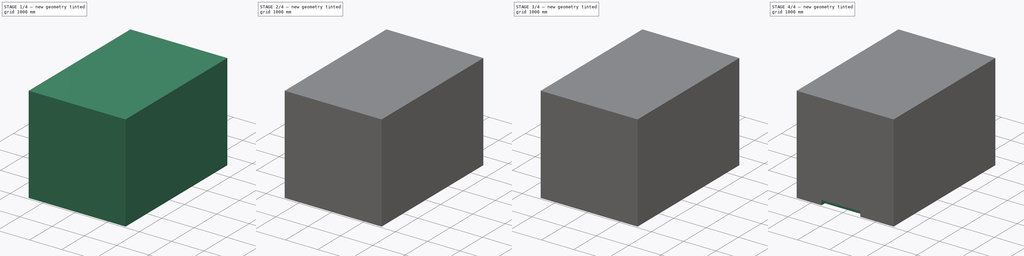
[diagram: build sequence overview — one tinted view per stage of 4, left to right]
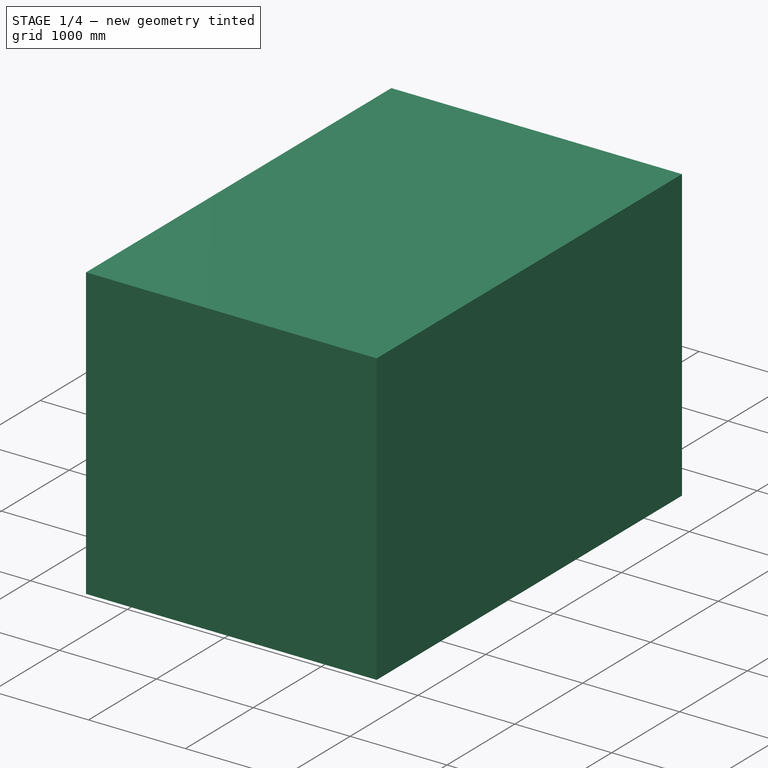
[diagram: stage 1 of 4 — iso view after this stage's code; geometry added in this stage tinted green]
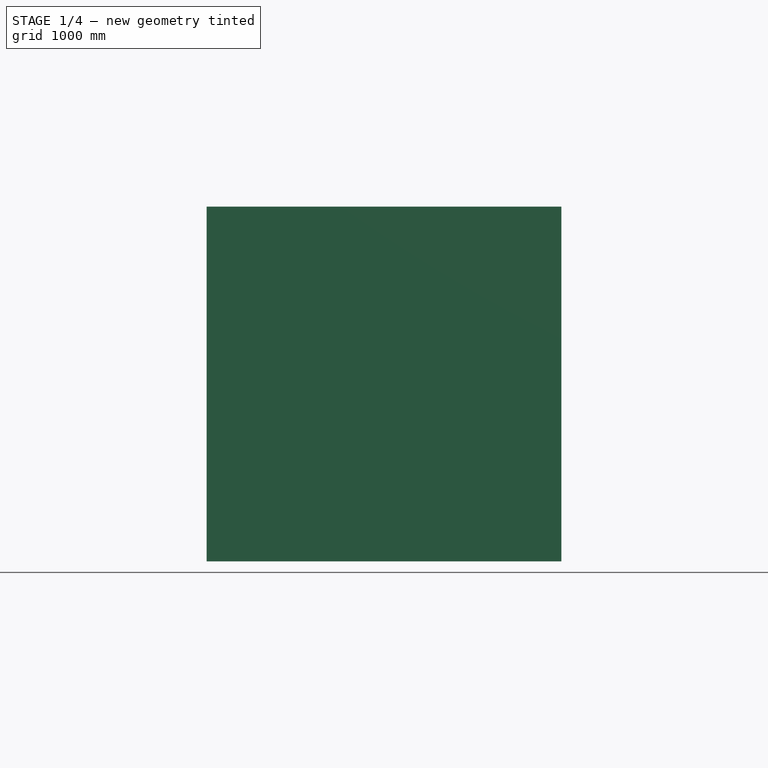
[diagram: stage 1 of 4 — front view after this stage's code; geometry added in this stage tinted green]
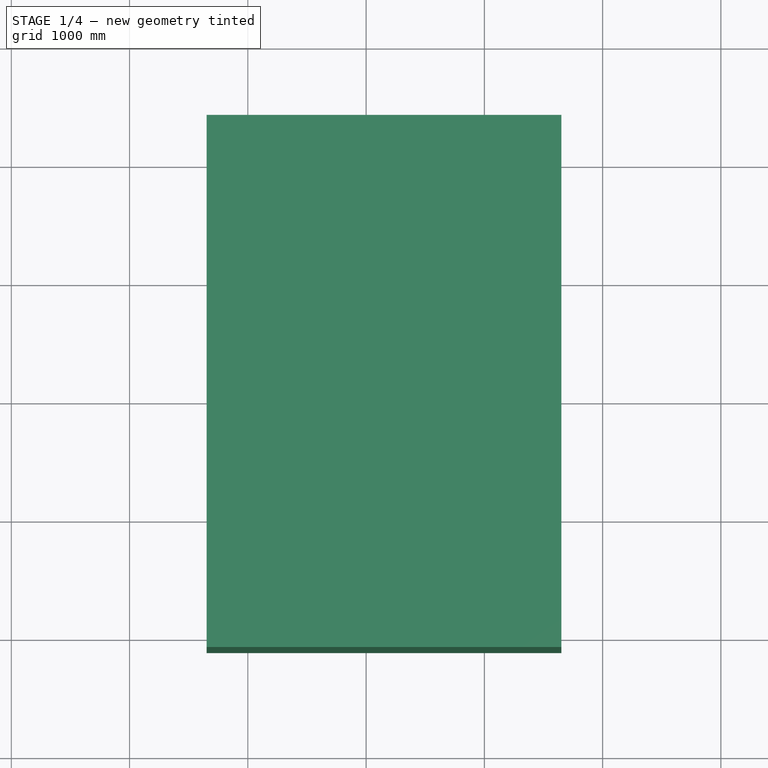
[diagram: stage 1 of 4 — top view after this stage's code; geometry added in this stage tinted green]
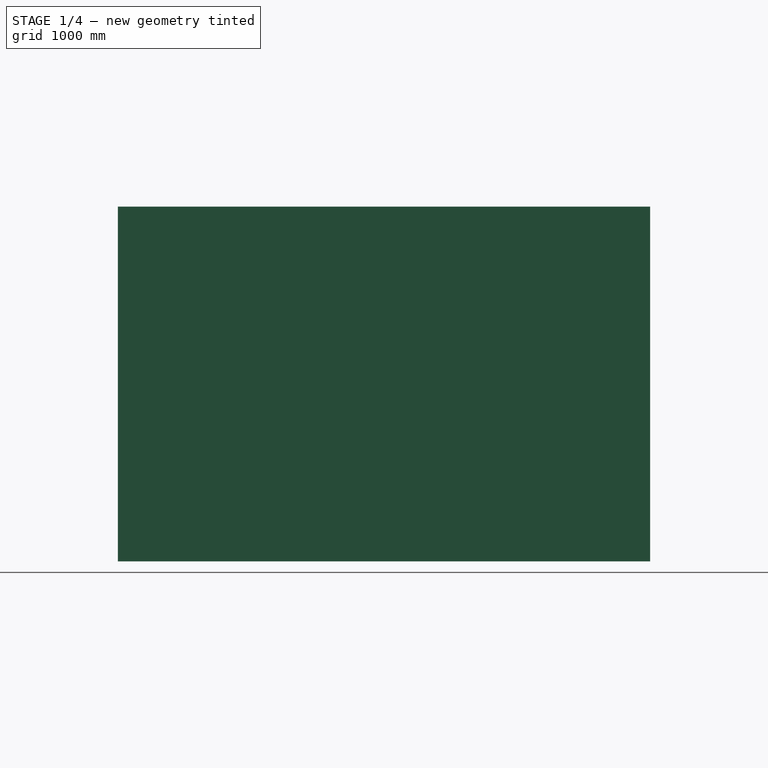
[diagram: stage 1 of 4 — right view after this stage's code; geometry added in this stage tinted green]
FCSTD DOCUMENT  (FreeCAD 0.20R29603 (Git))
Label: room_sample_model_for_air_circulation
License: All rights reserved
LicenseURL: http://en.wikipedia.org/wiki/All_rights_reserved
objects: Sketcher::SketchObject×11, PartDesign::Pocket×10, PartDesign::Pad×1, PartDesign::Body×1
note: 34 computed .brp shape members not serialized (recipe doc carries the construction recipe); baked Part::Feature solids carry a one-line shape summary decoded from their .brp

FEATURE [Sketcher::SketchObject] Sketch
  FullyConstrained = false
  MapMode = 5
  Support = -> [XY_Plane]
  sketch-geometry (4):
    g0: LineSegment StartX=-1348.64 StartY=2390.23 StartZ=0 EndX=1651.36 EndY=2390.23 EndZ=0
    g1: LineSegment StartX=1651.36 StartY=2390.23 StartZ=0 EndX=1651.36 EndY=-2109.77 EndZ=0
    g2: LineSegment StartX=1651.36 StartY=-2109.77 StartZ=0 EndX=-1348.64 EndY=-2109.77 EndZ=0
    g3: LineSegment StartX=-1348.64 StartY=-2109.77 StartZ=0 EndX=-1348.64 EndY=2390.23 EndZ=0
  constraints (10):
    c: Coincident(g0,g1)
    c: Coincident(g1,g2)
    c: Coincident(g2,g3)
    c: Coincident(g3,g0)
    c: Horizontal(g0)
    c: Horizontal(g2)
    c: Vertical(g1)
    c: Vertical(g3)
    c: DistanceX(g0,g0) = 3000
    c: DistanceY(g1,g1) = 4500
FEATURE [PartDesign::Pad] Pad
  Direction = (0,0,1)
  Length = 3000
  Length2 = 10
  Profile = -> Sketch
  ReferenceAxis = -> Sketch [N_Axis]
  Type = 0
FEATURE [Sketcher::SketchObject] Sketch001
  FullyConstrained = false
  MapMode = 5
  Placement = pos=(0,0,0) rot=(1,0,0;3.14159rad)
  Support = -> [Pad]
  sketch-geometry (38):
    g0: LineSegment StartX=1287.3 StartY=1122.81 StartZ=0 EndX=1337.3 EndY=1122.81 EndZ=0
    g1: LineSegment StartX=1337.3 StartY=1122.81 StartZ=0 EndX=1337.3 EndY=1172.81 EndZ=0
    g2: LineSegment StartX=1337.3 StartY=1172.81 StartZ=0 EndX=1287.3 EndY=1172.81 EndZ=0
    g3: LineSegment StartX=1287.3 StartY=1172.81 StartZ=0 EndX=1287.3 EndY=1122.81 EndZ=0
    g4: LineSegment StartX=1287.3 StartY=458.708 StartZ=0 EndX=1237.3 EndY=458.708 EndZ=0
    g5: LineSegment StartX=1237.3 StartY=458.708 StartZ=0 EndX=1237.3 EndY=508.708 EndZ=0
    g6: LineSegment StartX=1237.3 StartY=508.708 StartZ=0 EndX=1287.3 EndY=508.708 EndZ=0
    g7: LineSegment StartX=1287.3 StartY=508.708 StartZ=0 EndX=1287.3 EndY=458.708 EndZ=0
    g8: LineSegment StartX=1287.3 StartY=1122.81 StartZ=0 EndX=1287.3 EndY=458.708 EndZ=0
    g9: LineSegment StartX=-12.7036 StartY=1122.81 StartZ=0 EndX=-62.7036 EndY=1122.81 EndZ=0
    g10: LineSegment StartX=-62.7036 StartY=1122.81 StartZ=0 EndX=-62.7036 EndY=1172.81 EndZ=0
    g11: LineSegment StartX=-62.7036 StartY=1172.81 StartZ=0 EndX=-12.7036 EndY=1172.81 EndZ=0
    g12: LineSegment StartX=-12.7036 StartY=1172.81 StartZ=0 EndX=-12.7036 EndY=1122.81 EndZ=0
    g13: LineSegment StartX=1287.3 StartY=1122.81 StartZ=0 EndX=-12.7036 EndY=1122.81 EndZ=0
    g14: LineSegment StartX=-12.7036 StartY=458.708 StartZ=0 EndX=-62.7036 EndY=458.708 EndZ=0
    g15: LineSegment StartX=-62.7036 StartY=458.708 StartZ=0 EndX=-62.7036 EndY=508.708 EndZ=0
    g16: LineSegment StartX=-62.7036 StartY=508.708 StartZ=0 EndX=-12.7036 EndY=508.708 EndZ=0
    g17: LineSegment StartX=-12.7036 StartY=508.708 StartZ=0 EndX=-12.7036 EndY=458.708 EndZ=0
    g18: LineSegment StartX=-12.7036 StartY=1122.81 StartZ=0 EndX=-12.7036 EndY=458.708 EndZ=0
    g19: LineSegment StartX=1608.18 StartY=295.653 StartZ=0 EndX=1558.18 EndY=295.653 EndZ=0
    g20: LineSegment StartX=1558.18 StartY=295.653 StartZ=0 EndX=1558.18 EndY=345.653 EndZ=0
    g21: LineSegment StartX=1558.18 StartY=345.653 StartZ=0 EndX=1608.18 EndY=345.653 EndZ=0
    g22: LineSegment StartX=1608.18 StartY=345.653 StartZ=0 EndX=1608.18 EndY=295.653 EndZ=0
    g23: LineSegment StartX=1608.18 StartY=-604.347 StartZ=0 EndX=1558.18 EndY=-604.347 EndZ=0
    g24: LineSegment StartX=1608.18 StartY=295.653 StartZ=0 EndX=1608.18 EndY=-604.347 EndZ=0
    g25: LineSegment StartX=1128.18 StartY=295.653 StartZ=0 EndX=1078.18 EndY=295.653 EndZ=0
    g26: LineSegment StartX=1078.18 StartY=295.653 StartZ=0 EndX=1078.18 EndY=345.653 EndZ=0
    g27: LineSegment StartX=1078.18 StartY=345.653 StartZ=0 EndX=1128.18 EndY=345.653 EndZ=0
    g28: LineSegment StartX=1128.18 StartY=345.653 StartZ=0 EndX=1128.18 EndY=295.653 EndZ=0
    g29: LineSegment StartX=1608.18 StartY=295.653 StartZ=0 EndX=1128.18 EndY=295.653 EndZ=0
    g30: LineSegment StartX=1128.18 StartY=-604.347 StartZ=0 EndX=1078.18 EndY=-604.347 EndZ=0
    g31: LineSegment StartX=1078.18 StartY=-604.347 StartZ=0 EndX=1078.18 EndY=-654.347 EndZ=0
    g32: LineSegment StartX=1078.18 StartY=-654.347 StartZ=0 EndX=1128.18 EndY=-654.347 EndZ=0
    g33: LineSegment StartX=1128.18 StartY=-654.347 StartZ=0 EndX=1128.18 EndY=-604.347 EndZ=0
    g34: LineSegment StartX=1128.18 StartY=295.653 StartZ=0 EndX=1128.18 EndY=-604.347 EndZ=0
    g35: LineSegment StartX=1558.18 StartY=-604.347 StartZ=0 EndX=1558.18 EndY=-654.347 EndZ=0
    g36: LineSegment StartX=1558.18 StartY=-654.347 StartZ=0 EndX=1608.18 EndY=-654.347 EndZ=0
    g37: LineSegment StartX=1608.18 StartY=-654.347 StartZ=0 EndX=1608.18 EndY=-604.347 EndZ=0
  constraints (104):
    c: Coincident(g0,g1)
    c: Coincident(g1,g2)
    c: Coincident(g2,g3)
    c: Coincident(g3,g0)
    c: Horizontal(g0)
    c: Horizontal(g2)
    c: Vertical(g1)
    c: Vertical(g3)
    c: Equal(g0,g1)
    c: DistanceX(g0,g0) = 50
    c: Coincident(g4,g5)
    c: Coincident(g5,g6)
    c: Coincident(g6,g7)
    c: Coincident(g7,g4)
    c: Horizontal(g4)
    c: Horizontal(g6)
    c: Vertical(g5)
    c: Vertical(g7)
    c: Equal(g4,g5)
    c: Equal(g0,g4) = 50
    c: Coincident(g0,g8)
    c: Coincident(g4,g8)
    c: Distance(g8) = 664.1
    c: Angle(g8) = -1.5708
    c: Coincident(g9,g10)
    c: Coincident(g10,g11)
    c: Coincident(g11,g12)
    c: Coincident(g12,g9)
    c: Horizontal(g9)
    c: Horizontal(g11)
    c: Vertical(g10)
    c: Vertical(g12)
    c: Equal(g9,g10)
    c: Equal(g0,g9) = 50
    c: Coincident(g0,g13)
    c: Coincident(g9,g13)
    c: Distance(g13) = 1300
    c: Perpendicular(g13,g8)
    c: Coincident(g14,g15)
    c: Coincident(g15,g16)
    c: Coincident(g16,g17)
    c: Coincident(g17,g14)
    c: Horizontal(g14)
    c: Horizontal(g16)
    c: Vertical(g15)
    c: Vertical(g17)
    c: Equal(g14,g15)
    c: Equal(g0,g14) = 50
    c: Coincident(g9,g18)
    c: Coincident(g14,g18)
    c: Equal(g8,g18)
    c: Parallel(g18,g8)
    c: Coincident(g19,g20)
    c: Coincident(g20,g21)
    c: Coincident(g21,g22)
    c: Coincident(g22,g19)
    c: Horizontal(g19)
    c: Horizontal(g21)
    c: Vertical(g20)
    c: Vertical(g22)
    c: Equal(g19,g20)
    c: Equal(g0,g19) = 50
    c: Horizontal(g23)
    c: Equal(g0,g23) = 50
    c: Coincident(g19,g24)
    c: Coincident(g23,g24)
    c: Parallel(g24,g8)
    c: Coincident(g25,g26)
    c: Coincident(g26,g27)
    c: Coincident(g27,g28)
    c: Coincident(g28,g25)
    c: Horizontal(g25)
    c: Horizontal(g27)
    c: Vertical(g26)
    c: Vertical(g28)
    c: Equal(g25,g26)
    c: Equal(g0,g25) = 50
    c: Coincident(g19,g29)
    c: Coincident(g25,g29)
    c: Perpendicular(g29,g8)
    c: Coincident(g30,g31)
    c: Coincident(g31,g32)
    c: Coincident(g32,g33)
    c: Coincident(g33,g30)
    c: Horizontal(g30)
    c: Horizontal(g32)
    c: Vertical(g31)
    c: Vertical(g33)
    c: Equal(g30,g31)
    c: Equal(g0,g30) = 50
    c: Coincident(g25,g34)
    c: Coincident(g30,g34)
    c: Parallel(g34,g8)
    c: DistanceX(g29,g29) = 480
    c: Equal(g24,g34)
    c: DistanceY(g34,g34) = 900
    c: Coincident(g23,g35)
    c: Coincident(g35,g36)
    c: Horizontal(g36)
    c: Coincident(g36,g37)
    c: Coincident(g37,g23)
    c: Vertical(g37)
    c: Vertical(g35)
    c: Equal(g35,g23)
FEATURE [PartDesign::Pocket] Pocket
  BaseFeature = -> Pad
  Direction = (0,0,1)
  Length = 620
  Length2 = 5
  Profile = -> Sketch001
  ReferenceAxis = -> Sketch001 [N_Axis]
  Type = 0
FEATURE [Sketcher::SketchObject] Sketch002
  FullyConstrained = false
  MapMode = 5
  Placement = pos=(0,0,620) rot=(1,0,0;3.14159rad)
  Support = -> [Pocket]
  sketch-geometry (8):
    g0: LineSegment StartX=-68.3598 StartY=1185.09 StartZ=0 EndX=1341.52 EndY=1185.09 EndZ=0
    g1: LineSegment StartX=1341.52 StartY=1185.09 StartZ=0 EndX=1341.52 EndY=456.651 EndZ=0
    g2: LineSegment StartX=1341.52 StartY=456.651 StartZ=0 EndX=-68.3598 EndY=456.651 EndZ=0
    g3: LineSegment StartX=-68.3598 StartY=456.651 StartZ=0 EndX=-68.3598 EndY=1185.09 EndZ=0
    g4: LineSegment StartX=1077.17 StartY=349.291 StartZ=0 EndX=1617.63 EndY=349.291 EndZ=0
    g5: LineSegment StartX=1617.63 StartY=349.291 StartZ=0 EndX=1617.63 EndY=-661.127 EndZ=0
    g6: LineSegment StartX=1617.63 StartY=-661.127 StartZ=0 EndX=1077.17 EndY=-661.127 EndZ=0
    g7: LineSegment StartX=1077.17 StartY=-661.127 StartZ=0 EndX=1077.17 EndY=349.291 EndZ=0
  constraints (16):
    c: Coincident(g0,g1)
    c: Coincident(g1,g2)
    c: Coincident(g2,g3)
    c: Coincident(g3,g0)
    c: Horizontal(g0)
    c: Horizontal(g2)
    c: Vertical(g1)
    c: Vertical(g3)
    c: Coincident(g4,g5)
    c: Coincident(g5,g6)
    c: Coincident(g6,g7)
    c: Coincident(g7,g4)
    c: Horizontal(g4)
    c: Horizontal(g6)
    c: Vertical(g5)
    c: Vertical(g7)
FEATURE [PartDesign::Pocket] Pocket001
  BaseFeature = -> Pocket
  Direction = (0,0,1)
  Length = 140
  Length2 = 5
  Profile = -> Sketch002
  ReferenceAxis = -> Sketch002 [N_Axis]
  Type = 0
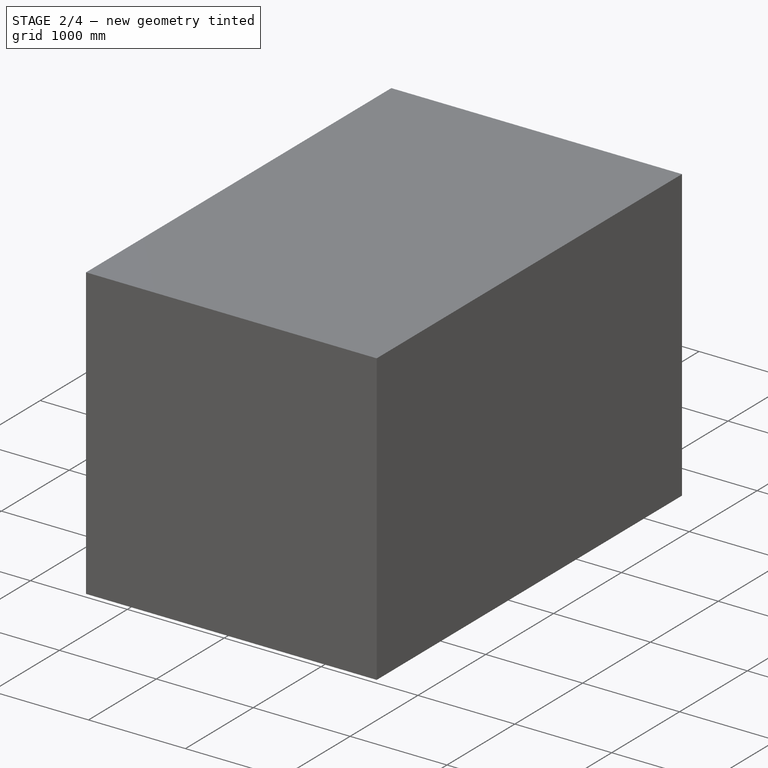
[diagram: stage 2 of 4 — iso view after this stage's code; geometry added in this stage tinted green]
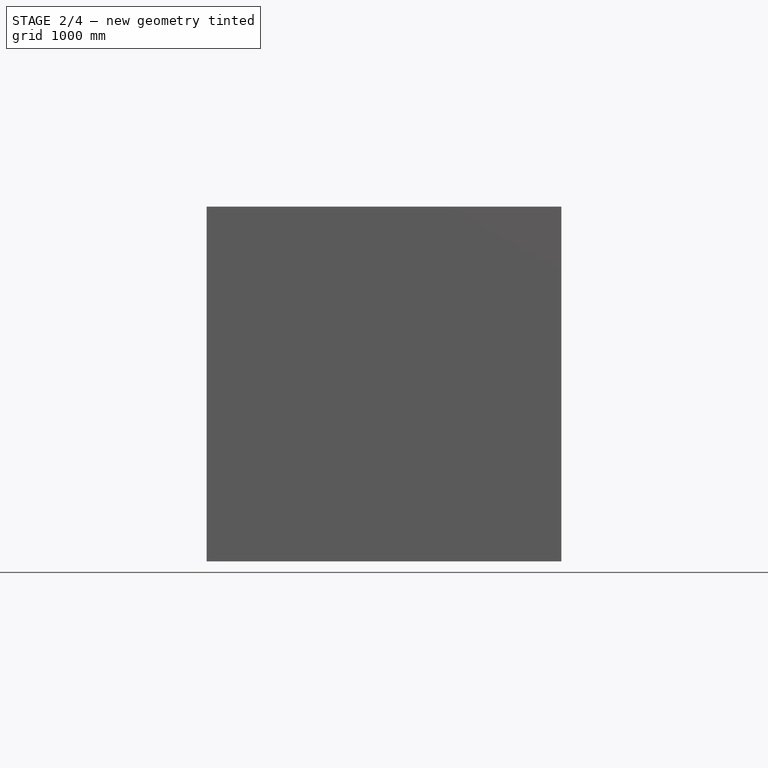
[diagram: stage 2 of 4 — front view after this stage's code; geometry added in this stage tinted green]
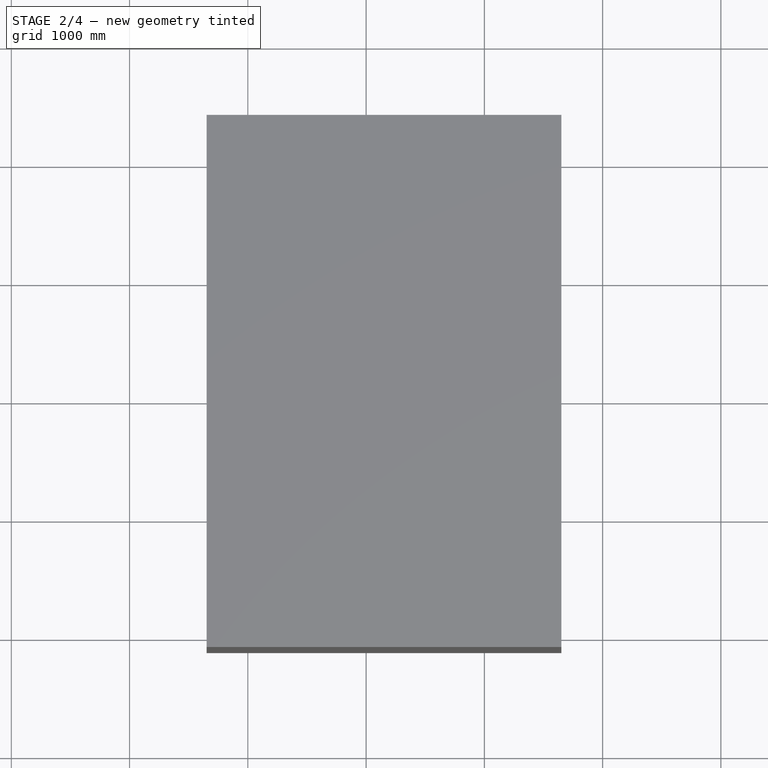
[diagram: stage 2 of 4 — top view after this stage's code; geometry added in this stage tinted green]
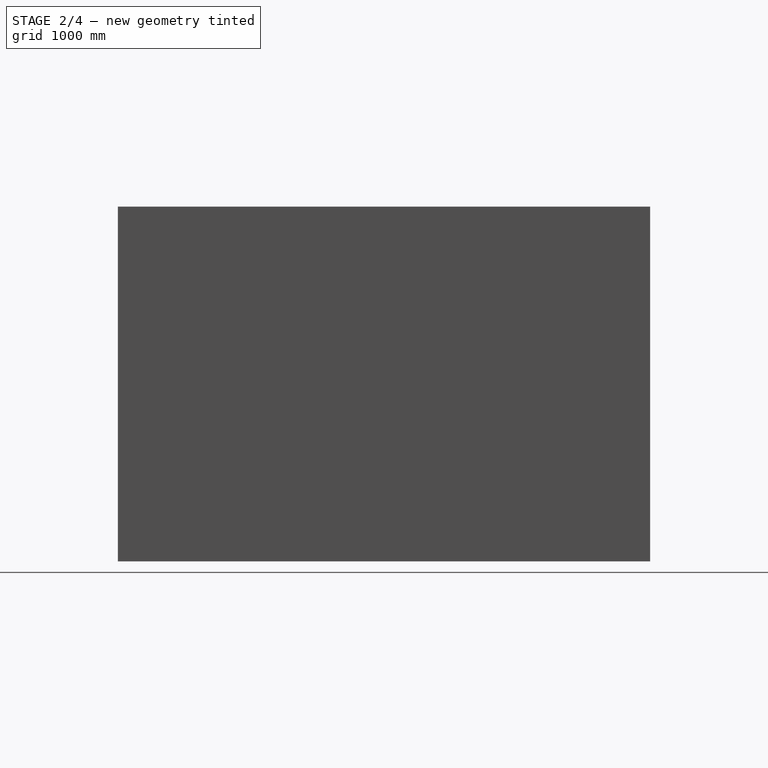
[diagram: stage 2 of 4 — right view after this stage's code; geometry added in this stage tinted green]
FEATURE [Sketcher::SketchObject] Sketch003
  FullyConstrained = false
  MapMode = 5
  Placement = pos=(0,0,0) rot=(1,0,0;3.14159rad)
  Support = -> [Pocket001]
  sketch-geometry (27):
    g0: LineSegment StartX=1569.72 StartY=-2311.82 StartZ=0 EndX=1609.72 EndY=-2311.82 EndZ=0
    g1: LineSegment StartX=1609.72 StartY=-2311.82 StartZ=0 EndX=1609.72 EndY=-2271.82 EndZ=0
    g2: LineSegment StartX=1609.72 StartY=-2271.82 StartZ=0 EndX=1569.72 EndY=-2271.82 EndZ=0
    g3: LineSegment StartX=1569.72 StartY=-2271.82 StartZ=0 EndX=1569.72 EndY=-2311.82 EndZ=0
    g4: LineSegment StartX=-435.324 StartY=-2311.82 StartZ=0 EndX=-395.324 EndY=-2311.82 EndZ=0
    g5: LineSegment StartX=-395.324 StartY=-2311.82 StartZ=0 EndX=-395.324 EndY=-2351.82 EndZ=0
    g6: LineSegment StartX=-395.324 StartY=-2351.82 StartZ=0 EndX=-435.324 EndY=-2351.82 EndZ=0
    g7: LineSegment StartX=-435.324 StartY=-2351.82 StartZ=0 EndX=-435.324 EndY=-2311.82 EndZ=0
    g8: LineSegment StartX=1569.72 StartY=-2311.82 StartZ=0 EndX=-435.324 EndY=-2311.82 EndZ=0
    g9: LineSegment StartX=1569.72 StartY=-711.816 StartZ=0 EndX=1609.72 EndY=-711.816 EndZ=0
    g10: LineSegment StartX=1609.72 StartY=-711.816 StartZ=0 EndX=1609.72 EndY=-751.816 EndZ=0
    g11: LineSegment StartX=1609.72 StartY=-751.816 StartZ=0 EndX=1569.72 EndY=-751.816 EndZ=0
    g12: LineSegment StartX=1569.72 StartY=-751.816 StartZ=0 EndX=1569.72 EndY=-711.816 EndZ=0
    g13: LineSegment StartX=1569.72 StartY=-2311.82 StartZ=0 EndX=1569.72 EndY=-711.816 EndZ=0
    g14: LineSegment StartX=-435.324 StartY=-711.816 StartZ=0 EndX=-395.324 EndY=-711.816 EndZ=0
    g15: LineSegment StartX=-395.324 StartY=-711.816 StartZ=0 EndX=-395.324 EndY=-751.816 EndZ=0
    g16: LineSegment StartX=-395.324 StartY=-751.816 StartZ=0 EndX=-435.324 EndY=-751.816 EndZ=0
    g17: LineSegment StartX=-435.324 StartY=-751.816 StartZ=0 EndX=-435.324 EndY=-711.816 EndZ=0
    g18: LineSegment StartX=1569.72 StartY=-711.816 StartZ=0 EndX=-435.324 EndY=-711.816 EndZ=0
    g19: LineSegment StartX=239.185 StartY=-1432.05 StartZ=0 EndX=279.185 EndY=-1432.05 EndZ=0
    g20: LineSegment StartX=279.185 StartY=-1432.05 StartZ=0 EndX=279.185 EndY=-1472.05 EndZ=0
    g21: LineSegment StartX=279.185 StartY=-1472.05 StartZ=0 EndX=239.185 EndY=-1472.05 EndZ=0
    g22: LineSegment StartX=239.185 StartY=-1472.05 StartZ=0 EndX=239.185 EndY=-1432.05 EndZ=0
    g23: LineSegment StartX=1070.76 StartY=-1432.05 StartZ=0 EndX=1110.76 EndY=-1432.05 EndZ=0
    g24: LineSegment StartX=1110.76 StartY=-1432.05 StartZ=0 EndX=1110.76 EndY=-1472.05 EndZ=0
    g25: LineSegment StartX=1110.76 StartY=-1472.05 StartZ=0 EndX=1070.76 EndY=-1472.05 EndZ=0
    g26: LineSegment StartX=1070.76 StartY=-1472.05 StartZ=0 EndX=1070.76 EndY=-1432.05 EndZ=0
  constraints (70):
    c: Coincident(g0,g1)
    c: Coincident(g1,g2)
    c: Coincident(g2,g3)
    c: Coincident(g3,g0)
    c: Horizontal(g0)
    c: Horizontal(g2)
    c: Vertical(g1)
    c: Vertical(g3)
    c: Equal(g0,g1)
    c: DistanceX(g0,g0) = 40
    c: Coincident(g4,g5)
    c: Coincident(g5,g6)
    c: Coincident(g6,g7)
    c: Coincident(g7,g4)
    c: Horizontal(g4)
    c: Horizontal(g6)
    c: Vertical(g5)
    c: Vertical(g7)
    c: Equal(g4,g5)
    c: Equal(g0,g4) = 40
    c: Coincident(g0,g8)
    c: Coincident(g4,g8)
    c: Distance(g8) = 2005.05
    c: Angle(g8) = 3.14159
    c: Coincident(g9,g10)
    c: Coincident(g10,g11)
    c: Coincident(g11,g12)
    c: Coincident(g12,g9)
    c: Horizontal(g9)
    c: Horizontal(g11)
    c: Vertical(g10)
    c: Vertical(g12)
    c: Equal(g9,g10)
    c: Equal(g0,g9) = 40
    c: Coincident(g0,g13)
    c: Coincident(g9,g13)
    c: Distance(g13) = 1600
    c: Perpendicular(g13,g8)
    c: Coincident(g14,g15)
    c: Coincident(g15,g16)
    c: Coincident(g16,g17)
    c: Coincident(g17,g14)
    c: Horizontal(g14)
    c: Horizontal(g16)
    c: Vertical(g15)
    c: Vertical(g17)
    c: Equal(g14,g15)
    c: Equal(g0,g14) = 40
    c: Coincident(g9,g18)
    c: Coincident(g14,g18)
    c: Equal(g8,g18)
    c: Parallel(g18,g8)
    c: Coincident(g19,g20)
    c: Coincident(g20,g21)
    c: Coincident(g21,g22)
    c: Coincident(g22,g19)
    c: Horizontal(g19)
    c: Horizontal(g21)
    c: Vertical(g20)
    c: Vertical(g22)
    c: Equal(g19,g20)
    c: Coincident(g23,g24)
    c: Coincident(g24,g25)
    c: Coincident(g25,g26)
    c: Coincident(g26,g23)
    c: Horizontal(g23)
    c: Horizontal(g25)
    c: Vertical(g24)
    c: Vertical(g26)
    c: Equal(g23,g24)
FEATURE [PartDesign::Pocket] Pocket002
  BaseFeature = -> Pocket001
  Direction = (0,0,1)
  Length = 200
  Length2 = 5
  Profile = -> Sketch003
  ReferenceAxis = -> Sketch003 [N_Axis]
  Type = 0
FEATURE [Sketcher::SketchObject] Sketch004
  FullyConstrained = false
  MapMode = 5
  Placement = pos=(0,0,200) rot=(1,0,0;3.14159rad)
  Support = -> [Pocket002]
  sketch-geometry (4):
    g0: LineSegment StartX=-482.19 StartY=-685.178 StartZ=0 EndX=1630.66 EndY=-685.178 EndZ=0
    g1: LineSegment StartX=1630.66 StartY=-685.178 StartZ=0 EndX=1630.66 EndY=-2348.87 EndZ=0
    g2: LineSegment StartX=1630.66 StartY=-2348.87 StartZ=0 EndX=-482.19 EndY=-2348.87 EndZ=0
    g3: LineSegment StartX=-482.19 StartY=-2348.87 StartZ=0 EndX=-482.19 EndY=-685.178 EndZ=0
  constraints (8):
    c: Coincident(g0,g1)
    c: Coincident(g1,g2)
    c: Coincident(g2,g3)
    c: Coincident(g3,g0)
    c: Horizontal(g0)
    c: Horizontal(g2)
    c: Vertical(g1)
    c: Vertical(g3)
FEATURE [PartDesign::Pocket] Pocket003
  BaseFeature = -> Pocket002
  Direction = (0,0,1)
  Length = 300
  Length2 = 5
  Profile = -> Sketch004
  ReferenceAxis = -> Sketch004 [N_Axis]
  Type = 0
FEATURE [Sketcher::SketchObject] Sketch005
  FullyConstrained = false
  MapMode = 5
  Placement = pos=(0,0,0) rot=(1,0,0;3.14159rad)
  Support = -> [Pocket003]
  sketch-geometry (4):
    g0: LineSegment StartX=1462.8 StartY=1171.27 StartZ=0 EndX=1619.54 EndY=1171.27 EndZ=0
    g1: LineSegment StartX=1619.54 StartY=1171.27 StartZ=0 EndX=1619.54 EndY=622.671 EndZ=0
    g2: LineSegment StartX=1619.54 StartY=622.671 StartZ=0 EndX=1462.8 EndY=622.671 EndZ=0
    g3: LineSegment StartX=1462.8 StartY=622.671 StartZ=0 EndX=1462.8 EndY=1171.27 EndZ=0
  constraints (8):
    c: Coincident(g0,g1)
    c: Coincident(g1,g2)
    c: Coincident(g2,g3)
    c: Coincident(g3,g0)
    c: Horizontal(g0)
    c: Horizontal(g2)
    c: Vertical(g1)
    c: Vertical(g3)
FEATURE [PartDesign::Pocket] Pocket004
  BaseFeature = -> Pocket003
  Direction = (0,0,1)
  Length = 500
  Length2 = 5
  Profile = -> Sketch005
  ReferenceAxis = -> Sketch005 [N_Axis]
  Type = 0
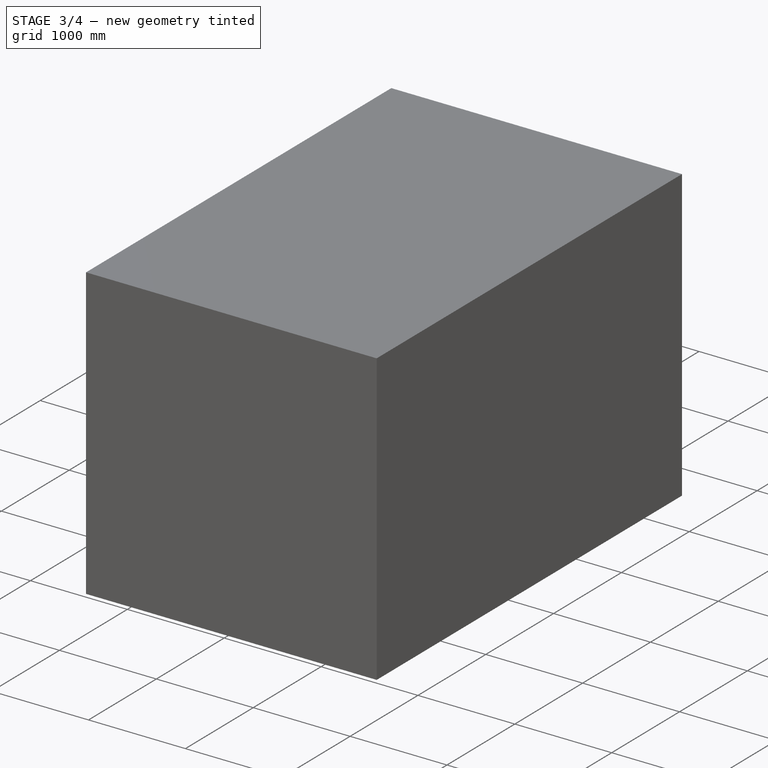
[diagram: stage 3 of 4 — iso view after this stage's code; geometry added in this stage tinted green]
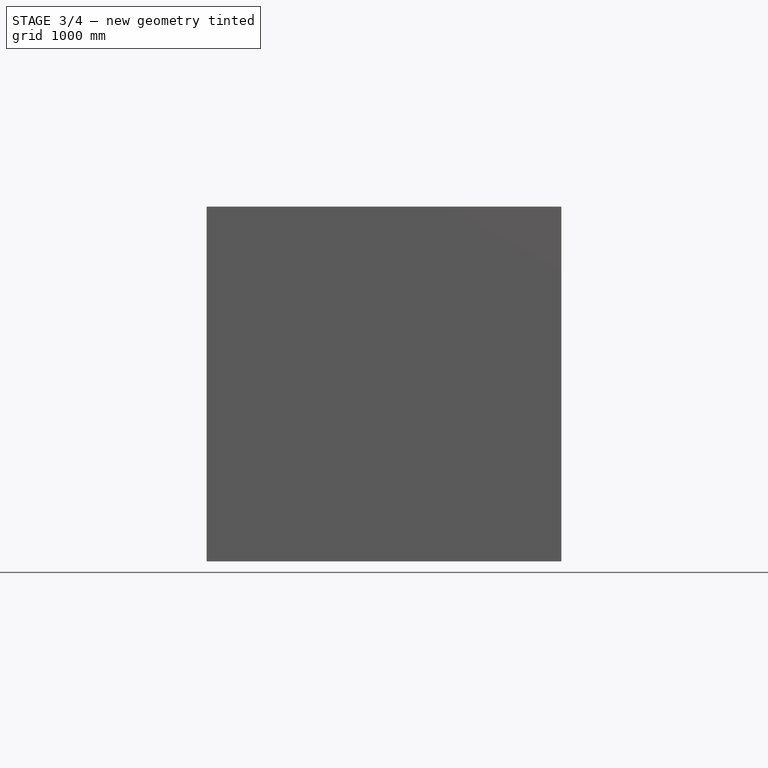
[diagram: stage 3 of 4 — front view after this stage's code; geometry added in this stage tinted green]
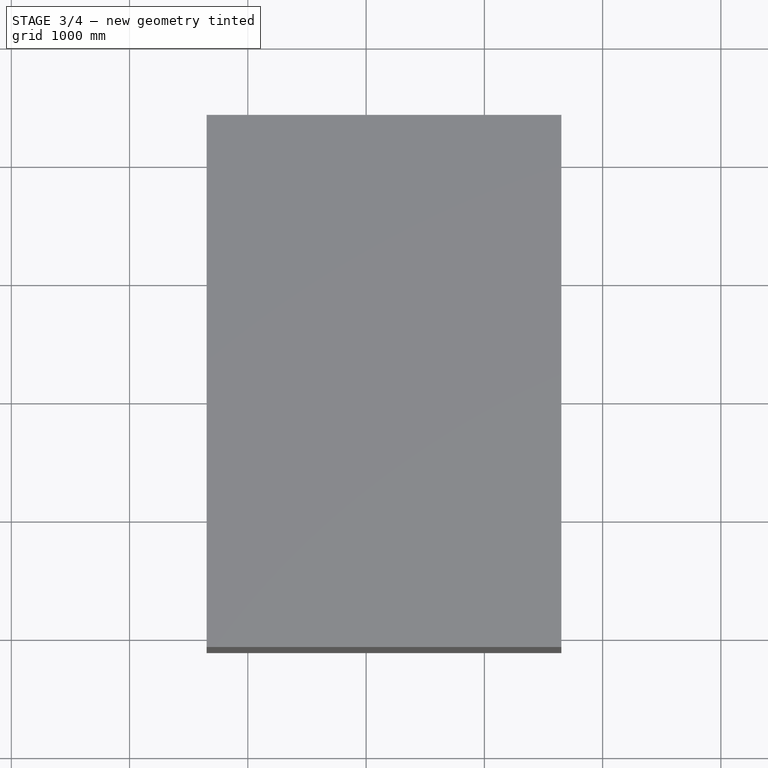
[diagram: stage 3 of 4 — top view after this stage's code; geometry added in this stage tinted green]
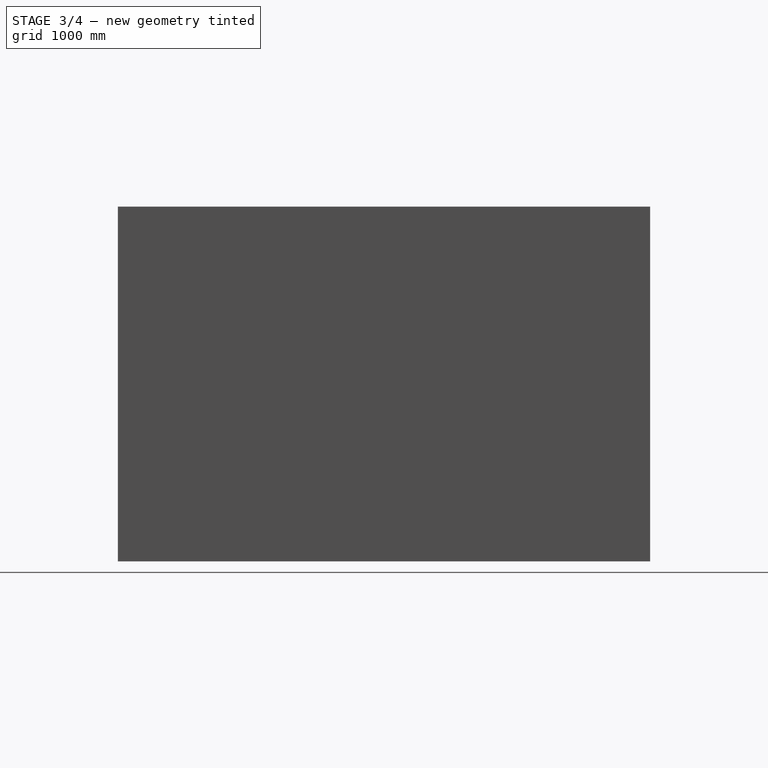
[diagram: stage 3 of 4 — right view after this stage's code; geometry added in this stage tinted green]
FEATURE [Sketcher::SketchObject] Sketch006
  FullyConstrained = false
  MapMode = 5
  Placement = pos=(0,0,760) rot=(1,0,0;3.14159rad)
  Support = -> [Pocket004]
  sketch-geometry (4):
    g0: LineSegment StartX=973.763 StartY=1118.55 StartZ=0 EndX=1580.07 EndY=959.215 EndZ=0
    g1: LineSegment StartX=1580.07 StartY=959.215 StartZ=0 EndX=1590.95 EndY=1000.64 EndZ=0
    g2: LineSegment StartX=1590.95 StartY=1000.64 StartZ=0 EndX=984.65 EndY=1159.98 EndZ=0
    g3: LineSegment StartX=984.65 StartY=1159.98 StartZ=0 EndX=973.763 EndY=1118.55 EndZ=0
  constraints (7):
    c: Coincident(g0,g1)
    c: Coincident(g1,g2)
    c: Coincident(g2,g3)
    c: Coincident(g3,g0)
    c: Parallel(g0,g2)
    c: Parallel(g3,g1)
    c: Perpendicular(g1,g0)
FEATURE [PartDesign::Pocket] Pocket005
  BaseFeature = -> Pocket004
  Direction = (0,0,1)
  Length = 350
  Length2 = 5
  Profile = -> Sketch006
  ReferenceAxis = -> Sketch006 [N_Axis]
  Type = 0
FEATURE [Sketcher::SketchObject] Sketch007
  FullyConstrained = false
  MapMode = 5
  Placement = pos=(0,0,0) rot=(1,0,0;3.14159rad)
  Support = -> [Pocket005]
  sketch-geometry (19):
    g0: LineSegment StartX=1214.75 StartY=1919 StartZ=0 EndX=1254.75 EndY=1919 EndZ=0
    g1: LineSegment StartX=1254.75 StartY=1919 StartZ=0 EndX=1254.75 EndY=1879 EndZ=0
    g2: LineSegment StartX=1254.75 StartY=1879 StartZ=0 EndX=1214.75 EndY=1879 EndZ=0
    g3: LineSegment StartX=1214.75 StartY=1879 StartZ=0 EndX=1214.75 EndY=1919 EndZ=0
    g4: LineSegment StartX=1581.61 StartY=1922.68 StartZ=0 EndX=1621.61 EndY=1922.68 EndZ=0
    g5: LineSegment StartX=1621.61 StartY=1922.68 StartZ=0 EndX=1621.61 EndY=1882.68 EndZ=0
    g6: LineSegment StartX=1621.61 StartY=1882.68 StartZ=0 EndX=1581.61 EndY=1882.68 EndZ=0
    g7: LineSegment StartX=1581.61 StartY=1882.68 StartZ=0 EndX=1581.61 EndY=1922.68 EndZ=0
    g8: LineSegment StartX=1214.75 StartY=1919 StartZ=0 EndX=1581.61 EndY=1922.68 EndZ=0
    g9: LineSegment StartX=1221.4 StartY=1255.33 StartZ=0 EndX=1261.4 EndY=1255.33 EndZ=0
    g10: LineSegment StartX=1261.4 StartY=1255.33 StartZ=0 EndX=1261.4 EndY=1215.33 EndZ=0
    g11: LineSegment StartX=1261.4 StartY=1215.33 StartZ=0 EndX=1221.4 EndY=1215.33 EndZ=0
    g12: LineSegment StartX=1221.4 StartY=1215.33 StartZ=0 EndX=1221.4 EndY=1255.33 EndZ=0
    g13: LineSegment StartX=1214.75 StartY=1919 StartZ=0 EndX=1221.4 EndY=1255.33 EndZ=0
    g14: LineSegment StartX=1588.27 StartY=1259.01 StartZ=0 EndX=1628.27 EndY=1259.01 EndZ=0
    g15: LineSegment StartX=1628.27 StartY=1259.01 StartZ=0 EndX=1628.27 EndY=1219.01 EndZ=0
    g16: LineSegment StartX=1628.27 StartY=1219.01 StartZ=0 EndX=1588.27 EndY=1219.01 EndZ=0
    g17: LineSegment StartX=1588.27 StartY=1219.01 StartZ=0 EndX=1588.27 EndY=1259.01 EndZ=0
    g18: LineSegment StartX=1221.4 StartY=1255.33 StartZ=0 EndX=1588.27 EndY=1259.01 EndZ=0
  constraints (50):
    c: Coincident(g0,g1)
    c: Coincident(g1,g2)
    c: Coincident(g2,g3)
    c: Coincident(g3,g0)
    c: Horizontal(g0)
    c: Horizontal(g2)
    c: Vertical(g1)
    c: Vertical(g3)
    c: Equal(g0,g1)
    c: DistanceX(g0,g0) = 40
    c: Coincident(g4,g5)
    c: Coincident(g5,g6)
    c: Coincident(g6,g7)
    c: Coincident(g7,g4)
    c: Horizontal(g4)
    c: Horizontal(g6)
    c: Vertical(g5)
    c: Vertical(g7)
    c: Equal(g4,g5)
    c: Equal(g0,g4) = 40
    c: Coincident(g0,g8)
    c: Coincident(g4,g8)
    c: Angle(g8) = 0.0100211
    c: Coincident(g9,g10)
    c: Coincident(g10,g11)
    c: Coincident(g11,g12)
    c: Coincident(g12,g9)
    c: Horizontal(g9)
    c: Horizontal(g11)
    c: Vertical(g10)
    c: Vertical(g12)
    c: Equal(g9,g10)
    c: Equal(g0,g9) = 40
    c: Coincident(g0,g13)
    c: Coincident(g9,g13)
    c: Perpendicular(g13,g8)
    c: Coincident(g14,g15)
    c: Coincident(g15,g16)
    c: Coincident(g16,g17)
    c: Coincident(g17,g14)
    c: Horizontal(g14)
    c: Horizontal(g16)
    c: Vertical(g15)
    c: Vertical(g17)
    c: Equal(g14,g15)
    c: Equal(g0,g14) = 40
    c: Coincident(g9,g18)
    c: Coincident(g14,g18)
    c: Equal(g8,g18)
    c: Parallel(g18,g8)
FEATURE [PartDesign::Pocket] Pocket006
  BaseFeature = -> Pocket005
  Direction = (0,0,1)
  Length = 70
  Length2 = 5
  Profile = -> Sketch007
  ReferenceAxis = -> Sketch007 [N_Axis]
  Type = 0
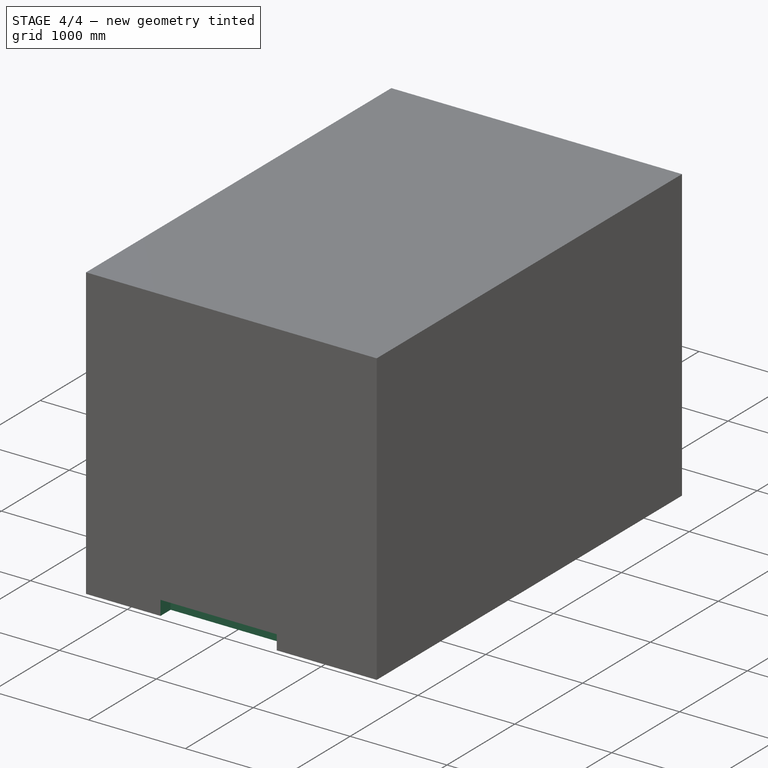
[diagram: stage 4 of 4 — iso view after this stage's code; geometry added in this stage tinted green]
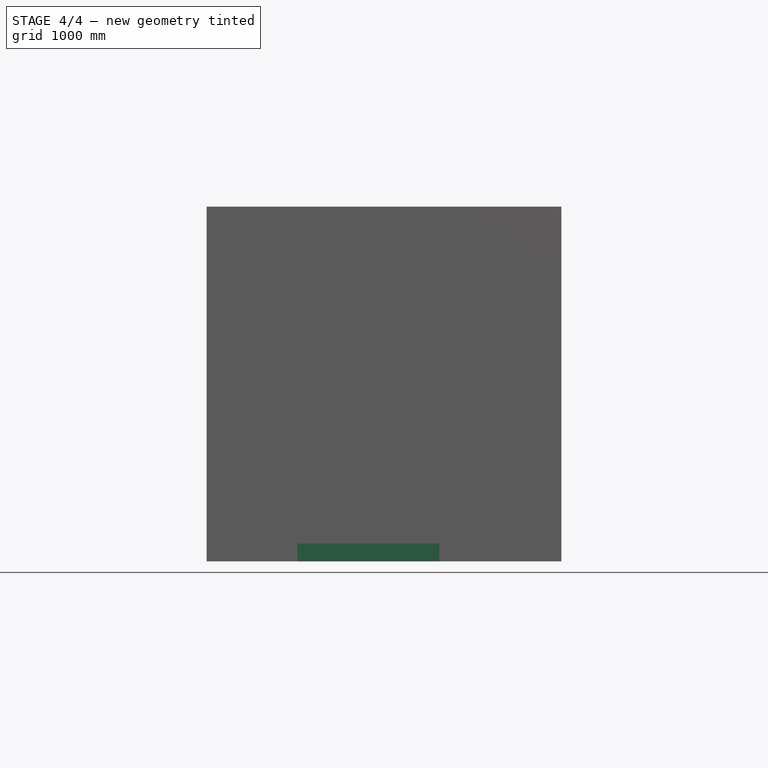
[diagram: stage 4 of 4 — front view after this stage's code; geometry added in this stage tinted green]
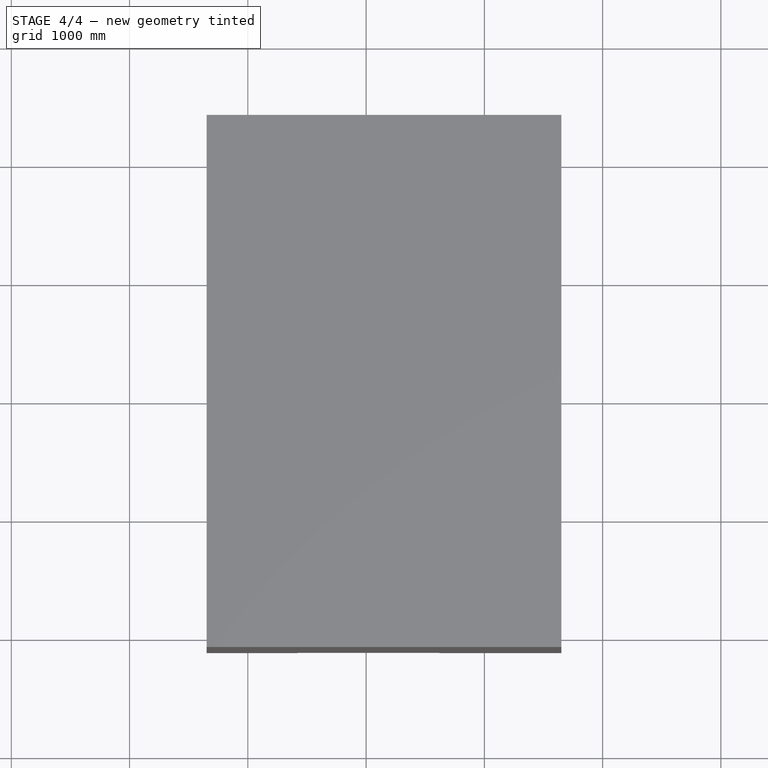
[diagram: stage 4 of 4 — top view after this stage's code; geometry added in this stage tinted green]
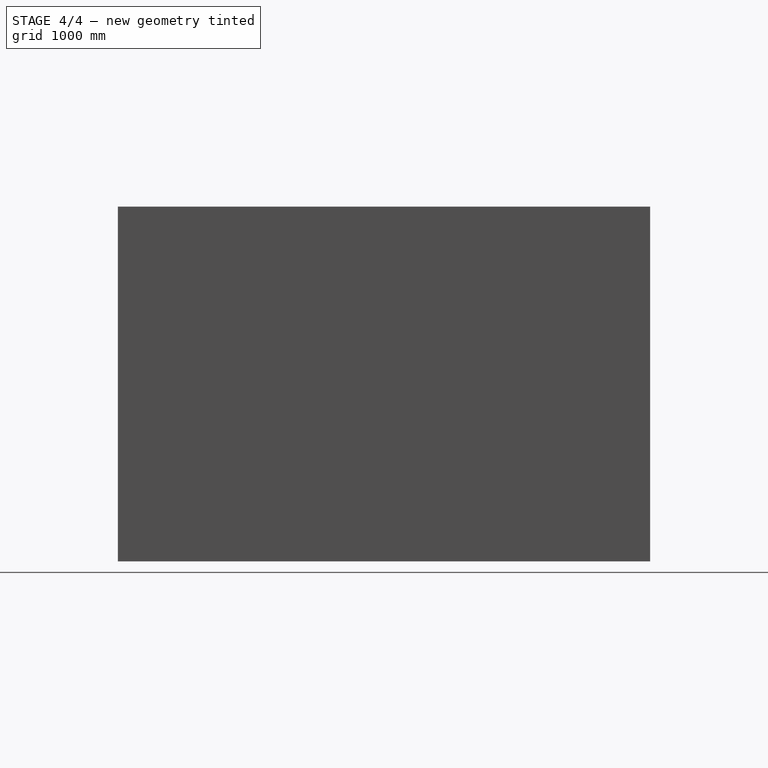
[diagram: stage 4 of 4 — right view after this stage's code; geometry added in this stage tinted green]
FEATURE [Sketcher::SketchObject] Sketch008
  FullyConstrained = false
  MapMode = 5
  Placement = pos=(0,0,70) rot=(1,0,0;3.14159rad)
  Support = -> [Pocket006]
  sketch-geometry (4):
    g0: LineSegment StartX=1195.71 StartY=1923.08 StartZ=0 EndX=1643.43 EndY=1923.08 EndZ=0
    g1: LineSegment StartX=1643.43 StartY=1923.08 StartZ=0 EndX=1643.43 EndY=1203.7 EndZ=0
    g2: LineSegment StartX=1643.43 StartY=1203.7 StartZ=0 EndX=1195.71 EndY=1203.7 EndZ=0
    g3: LineSegment StartX=1195.71 StartY=1203.7 StartZ=0 EndX=1195.71 EndY=1923.08 EndZ=0
  constraints (8):
    c: Coincident(g0,g1)
    c: Coincident(g1,g2)
    c: Coincident(g2,g3)
    c: Coincident(g3,g0)
    c: Horizontal(g0)
    c: Horizontal(g2)
    c: Vertical(g1)
    c: Vertical(g3)
FEATURE [PartDesign::Pocket] Pocket007
  BaseFeature = -> Pocket006
  Direction = (0,0,1)
  Length = 1130
  Length2 = 5
  Profile = -> Sketch008
  ReferenceAxis = -> Sketch008 [N_Axis]
  Type = 0
FEATURE [Sketcher::SketchObject] Sketch009
  FullyConstrained = false
  MapMode = 5
  Placement = pos=(0,0,0) rot=(1,0,0;3.14159rad)
  Support = -> [Pocket007]
  sketch-geometry (4):
    g0: LineSegment StartX=-1328.19 StartY=2086.17 StartZ=0 EndX=-928.803 EndY=2086.17 EndZ=0
    g1: LineSegment StartX=-928.803 StartY=2086.17 StartZ=0 EndX=-928.803 EndY=1683.71 EndZ=0
    g2: LineSegment StartX=-928.803 StartY=1683.71 StartZ=0 EndX=-1328.19 EndY=1683.71 EndZ=0
    g3: LineSegment StartX=-1328.19 StartY=1683.71 StartZ=0 EndX=-1328.19 EndY=2086.17 EndZ=0
  constraints (8):
    c: Coincident(g0,g1)
    c: Coincident(g1,g2)
    c: Coincident(g2,g3)
    c: Coincident(g3,g0)
    c: Horizontal(g0)
    c: Horizontal(g2)
    c: Vertical(g1)
    c: Vertical(g3)
FEATURE [PartDesign::Pocket] Pocket008
  BaseFeature = -> Pocket007
  Direction = (0,0,1)
  Length = 1100
  Length2 = 5
  Profile = -> Sketch009
  ReferenceAxis = -> Sketch009 [N_Axis]
  Type = 0
FEATURE [Sketcher::SketchObject] Sketch010
  ExternalGeometry = -> [Pocket008]
  FullyConstrained = false
  MapMode = 5
  Placement = pos=(0,0,0) rot=(1,0,0;3.14159rad)
  Support = -> [Pocket008]
  sketch-geometry (4):
    g0: LineSegment StartX=-580.727 StartY=2109.77 StartZ=0 EndX=619.273 EndY=2109.77 EndZ=0
    g1: LineSegment StartX=619.273 StartY=2109.77 StartZ=0 EndX=619.273 EndY=1959.77 EndZ=0
    g2: LineSegment StartX=619.273 StartY=1959.77 StartZ=0 EndX=-580.727 EndY=1959.77 EndZ=0
    g3: LineSegment StartX=-580.727 StartY=1959.77 StartZ=0 EndX=-580.727 EndY=2109.77 EndZ=0
  constraints (11):
    c: Coincident(g0,g1)
    c: Coincident(g1,g2)
    c: Coincident(g2,g3)
    c: Coincident(g3,g0)
    c: Horizontal(g0)
    c: Horizontal(g2)
    c: Vertical(g1)
    c: Vertical(g3)
    c: PointOnObject(g0,g-3)
    c: DistanceY(g3,g3) = 150
    c: DistanceX(g2,g2) = 1200
FEATURE [PartDesign::Pocket] Pocket009
  BaseFeature = -> Pocket008
  Direction = (0,0,1)
  Length = 150
  Length2 = 5
  Profile = -> Sketch010
  ReferenceAxis = -> Sketch010 [N_Axis]
  Type = 0
FEATURE [PartDesign::Body] Body
  Group = -> [Sketch,Pad,Sketch001,Pocket,Sketch002,Pocket001,Sketch003,Pocket002,Sketch004,Pocket003,Sketch005,Pocket004,Sketch006,Pocket005,Sketch007,Pocket006,Sketch008,Pocket007,Sketch009,Pocket008,Sketch010,Pocket009]
  Origin = -> Origin
  Tip = -> Pocket009
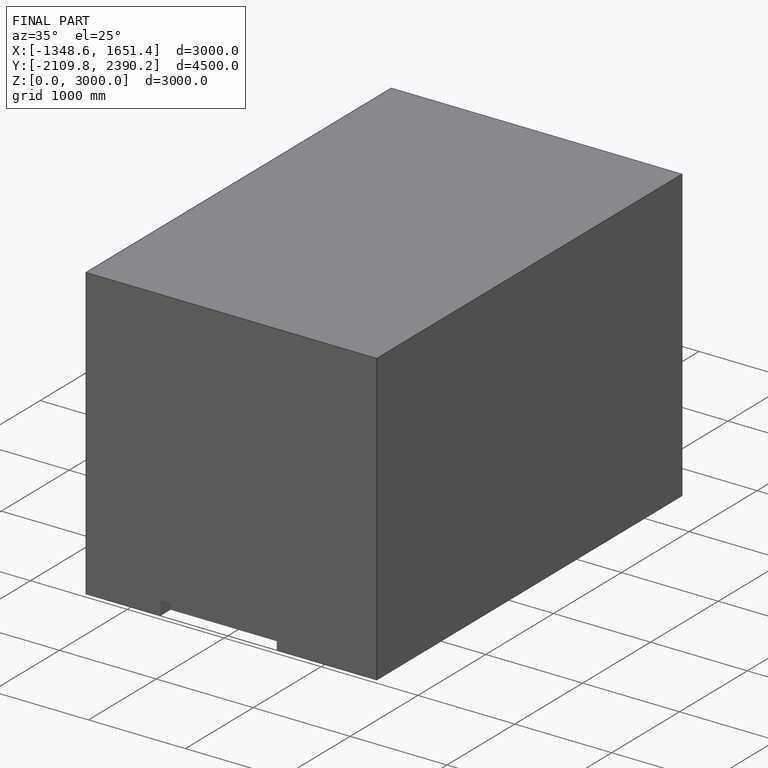
[diagram: finished part — iso view with bounding-box wireframe]
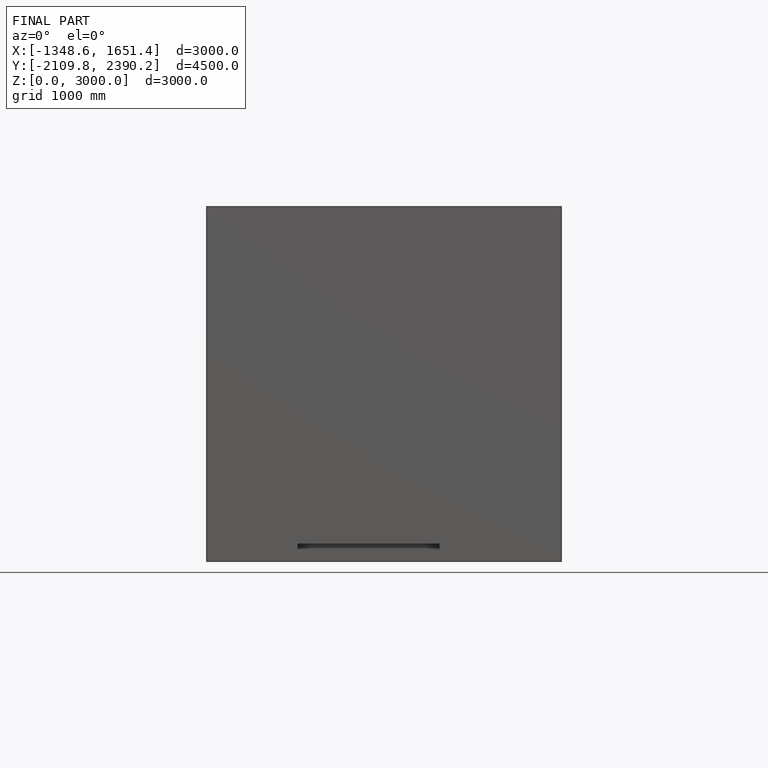
[diagram: finished part — front view with bounding-box wireframe]
